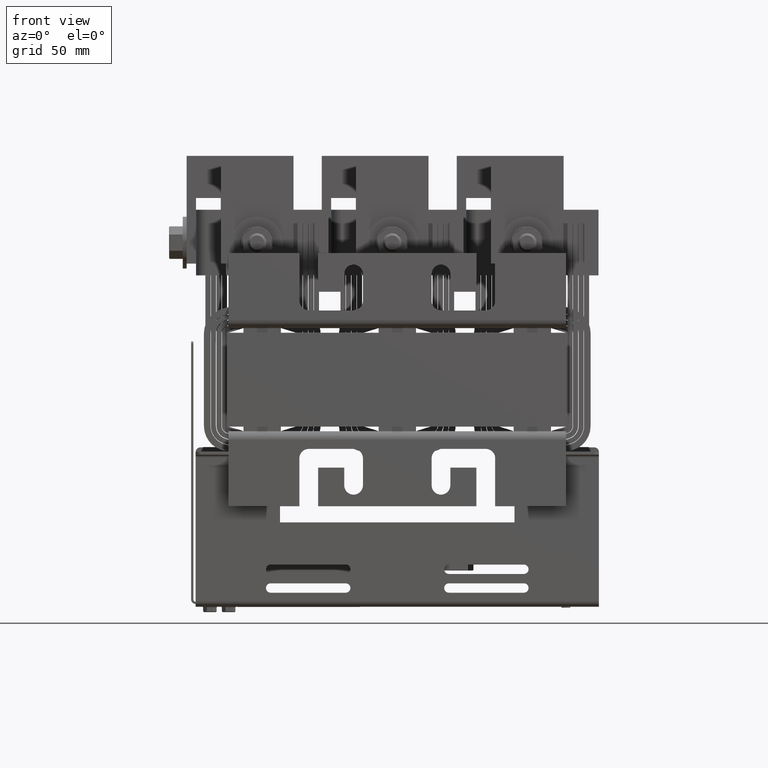
[diagram: clean part render]
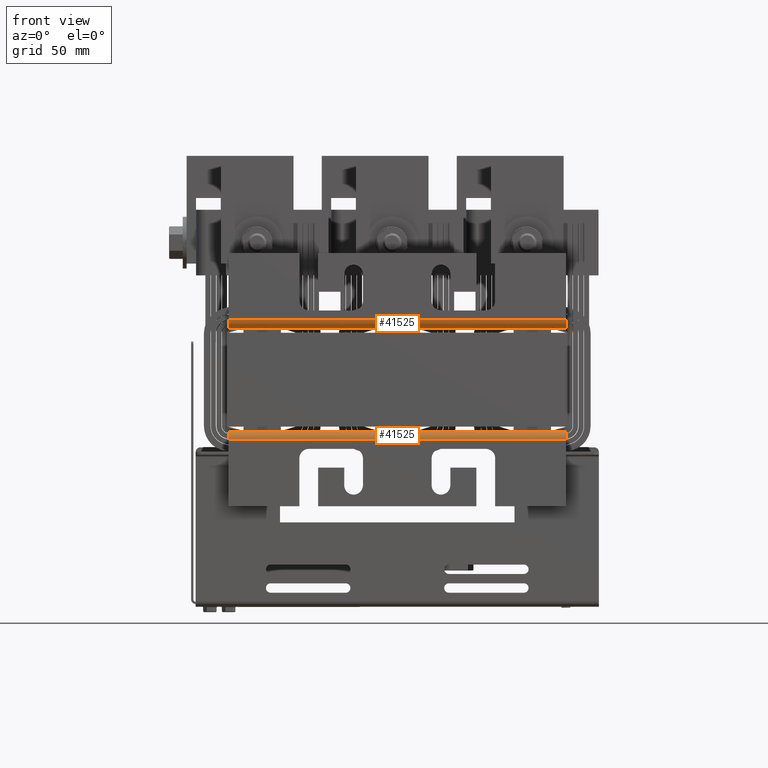
[diagram: same view with one multi-face feature highlighted, each face labeled with its STEP entity id]
A machine part, front view. The highlighted faces form ONE feature: a constant-radius fillet chain: 2 tangent blend faces with common blend radius 5.588 mm. The faces share edges in the B-rep.
Their STEP definitions:
[1] entity #41525 (Cylinder):
#3446=FACE_OUTER_BOUND('',#5782,.T.);
#5782=EDGE_LOOP('',(#28601,#28602,#28603,#28604));
#8410=LINE('',#61008,#12529);
#8434=LINE('',#61071,#12553);
#12529=VECTOR('',#48855,0.393700787401575);
#12553=VECTOR('',#48919,0.393700787401575);
#16612=CIRCLE('',#44743,0.22);
#16614=CIRCLE('',#44750,0.22);
#18244=VERTEX_POINT('',#61005);
#18245=VERTEX_POINT('',#61007);
#18260=VERTEX_POINT('',#61053);
#18264=VERTEX_POINT('',#61069);
#22318=EDGE_CURVE('',#18245,#18244,#8410,.T.);
#22343=EDGE_CURVE('',#18244,#18260,#16612,.T.);
#22351=EDGE_CURVE('',#18264,#18260,#8434,.T.);
#22352=EDGE_CURVE('',#18264,#18245,#16614,.T.);
#28601=ORIENTED_EDGE('',*,*,#22352,.T.);
#28602=ORIENTED_EDGE('',*,*,#22318,.T.);
#28603=ORIENTED_EDGE('',*,*,#22343,.T.);
#28604=ORIENTED_EDGE('',*,*,#22351,.F.);
#40702=CYLINDRICAL_SURFACE('',#44749,0.22);
#41525=ADVANCED_FACE('',(#3446),#40702,.T.);
#44743=AXIS2_PLACEMENT_3D('',#61055,#48901,#48902);
#44749=AXIS2_PLACEMENT_3D('',#61072,#48920,#48921);
#44750=AXIS2_PLACEMENT_3D('',#61073,#48922,#48923);
#48855=DIRECTION('',(0.,0.,-1.));
#48901=DIRECTION('center_axis',(0.,0.,1.));
#48902=DIRECTION('ref_axis',(0.,1.,0.));
#48919=DIRECTION('',(0.,0.,-1.));
#48920=DIRECTION('center_axis',(0.,0.,1.));
#48921=DIRECTION('ref_axis',(0.,1.,0.));
#48922=DIRECTION('center_axis',(0.,0.,-1.));
#48923=DIRECTION('ref_axis',(0.,1.,0.));
#61005=CARTESIAN_POINT('',(1.25089678142432,-0.514079182801154,-4.5));
#61007=CARTESIAN_POINT('',(1.25089678142432,-0.514079182801154,4.5));
#61008=CARTESIAN_POINT('',(1.25089678142432,-0.514079182801154,0.));
#61053=CARTESIAN_POINT('',(1.47089678142432,-0.294079182801155,-4.5));
#61055=CARTESIAN_POINT('Origin',(1.25089678142432,-0.294079182801155,-4.5));
#61069=CARTESIAN_POINT('',(1.47089678142432,-0.294079182801155,4.5));
#61071=CARTESIAN_POINT('',(1.47089678142432,-0.294079182801155,0.));
#61072=CARTESIAN_POINT('Origin',(1.25089678142432,-0.294079182801155,0.));
#61073=CARTESIAN_POINT('Origin',(1.25089678142432,-0.294079182801155,4.5));
[2] entity #41525 (Cylinder):
#3446=FACE_OUTER_BOUND('',#5782,.T.);
#5782=EDGE_LOOP('',(#28601,#28602,#28603,#28604));
#8410=LINE('',#61008,#12529);
#8434=LINE('',#61071,#12553);
#12529=VECTOR('',#48855,0.393700787401575);
#12553=VECTOR('',#48919,0.393700787401575);
#16612=CIRCLE('',#44743,0.22);
#16614=CIRCLE('',#44750,0.22);
#18244=VERTEX_POINT('',#61005);
#18245=VERTEX_POINT('',#61007);
#18260=VERTEX_POINT('',#61053);
#18264=VERTEX_POINT('',#61069);
#22318=EDGE_CURVE('',#18245,#18244,#8410,.T.);
#22343=EDGE_CURVE('',#18244,#18260,#16612,.T.);
#22351=EDGE_CURVE('',#18264,#18260,#8434,.T.);
#22352=EDGE_CURVE('',#18264,#18245,#16614,.T.);
#28601=ORIENTED_EDGE('',*,*,#22352,.T.);
#28602=ORIENTED_EDGE('',*,*,#22318,.T.);
#28603=ORIENTED_EDGE('',*,*,#22343,.T.);
#28604=ORIENTED_EDGE('',*,*,#22351,.F.);
#40702=CYLINDRICAL_SURFACE('',#44749,0.22);
#41525=ADVANCED_FACE('',(#3446),#40702,.T.);
#44743=AXIS2_PLACEMENT_3D('',#61055,#48901,#48902);
#44749=AXIS2_PLACEMENT_3D('',#61072,#48920,#48921);
#44750=AXIS2_PLACEMENT_3D('',#61073,#48922,#48923);
#48855=DIRECTION('',(0.,0.,-1.));
#48901=DIRECTION('center_axis',(0.,0.,1.));
#48902=DIRECTION('ref_axis',(0.,1.,0.));
#48919=DIRECTION('',(0.,0.,-1.));
#48920=DIRECTION('center_axis',(0.,0.,1.));
#48921=DIRECTION('ref_axis',(0.,1.,0.));
#48922=DIRECTION('center_axis',(0.,0.,-1.));
#48923=DIRECTION('ref_axis',(0.,1.,0.));
#61005=CARTESIAN_POINT('',(1.25089678142432,-0.514079182801154,-4.5));
#61007=CARTESIAN_POINT('',(1.25089678142432,-0.514079182801154,4.5));
#61008=CARTESIAN_POINT('',(1.25089678142432,-0.514079182801154,0.));
#61053=CARTESIAN_POINT('',(1.47089678142432,-0.294079182801155,-4.5));
#61055=CARTESIAN_POINT('Origin',(1.25089678142432,-0.294079182801155,-4.5));
#61069=CARTESIAN_POINT('',(1.47089678142432,-0.294079182801155,4.5));
#61071=CARTESIAN_POINT('',(1.47089678142432,-0.294079182801155,0.));
#61072=CARTESIAN_POINT('Origin',(1.25089678142432,-0.294079182801155,0.));
#61073=CARTESIAN_POINT('Origin',(1.25089678142432,-0.294079182801155,4.5));